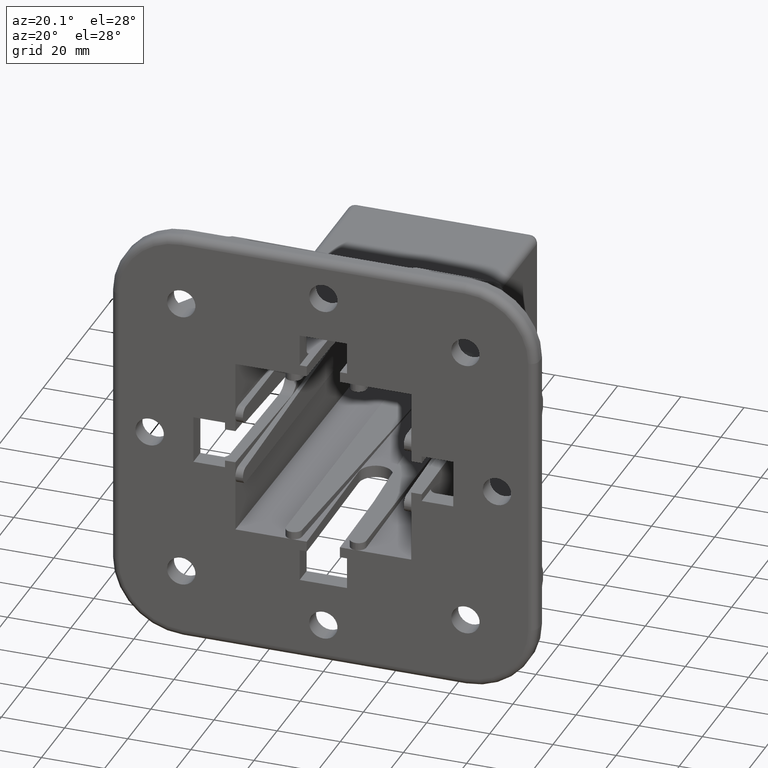
[diagram: clean part render]
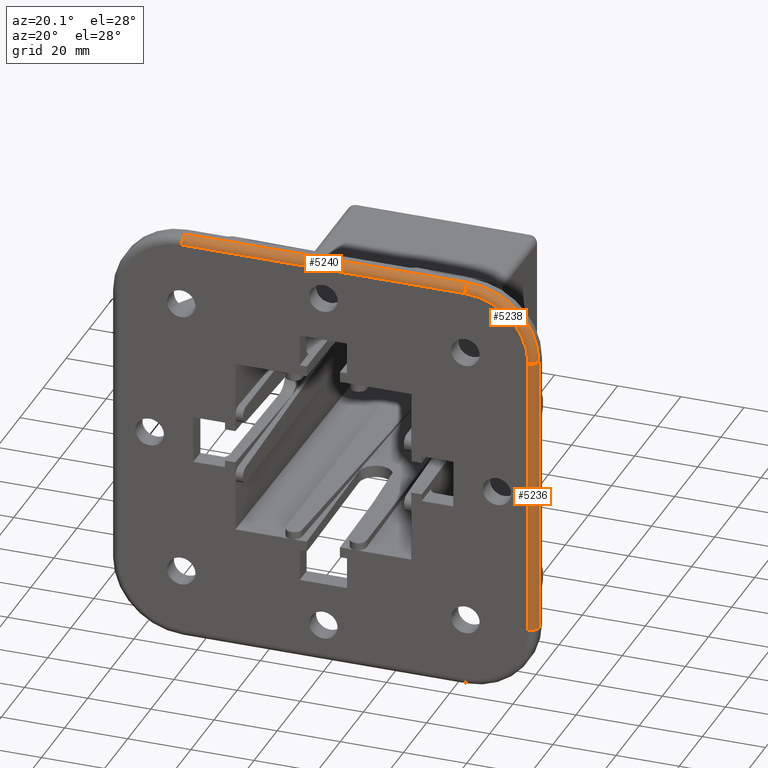
[diagram: same view with one multi-face feature highlighted, each face labeled with its STEP entity id]
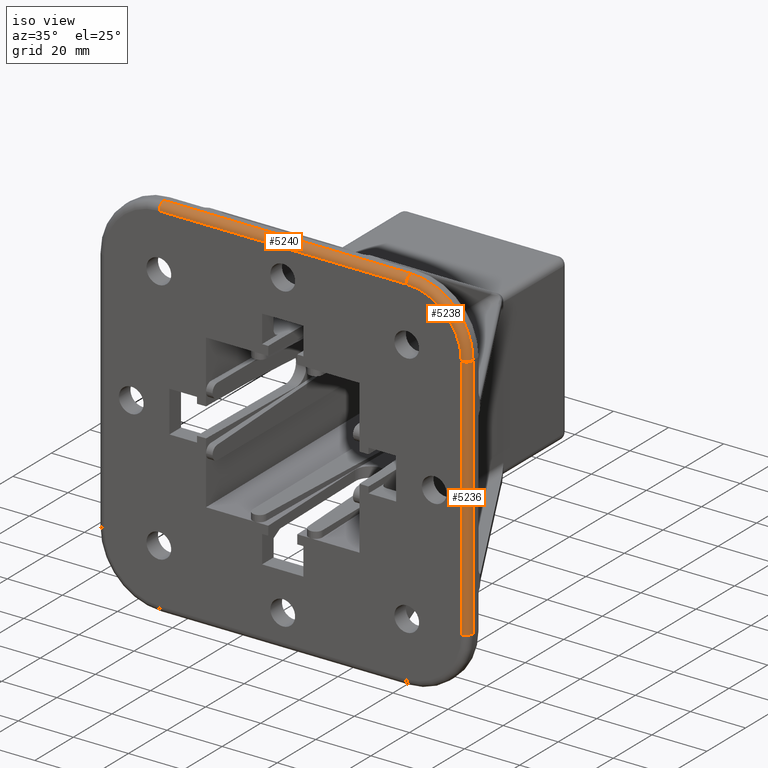
[diagram: same view with one multi-face feature highlighted, each face labeled with its STEP entity id]
A machine part, auxiliary view. The highlighted faces form ONE feature: a constant-radius fillet chain: 3 tangent blend faces with common blend radius 2.5 mm. The faces share edges in the B-rep.
A second angle (iso view) of the same feature is appended — it is thin or edge-on in the first view.
Their STEP definitions:
[1] entity #5240 (Cylinder):
#421=LINE('',#8310,#861);
#522=LINE('',#8558,#962);
#861=VECTOR('',#6267,89.7);
#962=VECTOR('',#6436,89.7);
#1181=CYLINDRICAL_SURFACE('',#5686,2.5);
#1422=FACE_OUTER_BOUND('',#1742,.T.);
#1742=EDGE_LOOP('',(#4405,#4406,#4407,#4408));
#1989=CIRCLE('',#5683,2.5);
#1991=CIRCLE('',#5687,2.5);
#2381=VERTEX_POINT('',#8308);
#2382=VERTEX_POINT('',#8309);
#2494=VERTEX_POINT('',#8555);
#2495=VERTEX_POINT('',#8557);
#2887=EDGE_CURVE('',#2381,#2382,#421,.T.);
#3015=EDGE_CURVE('',#2494,#2495,#522,.T.);
#3285=EDGE_CURVE('',#2381,#2495,#1989,.T.);
#3287=EDGE_CURVE('',#2382,#2494,#1991,.T.);
#4405=ORIENTED_EDGE('',*,*,#3285,.T.);
#4406=ORIENTED_EDGE('',*,*,#3015,.F.);
#4407=ORIENTED_EDGE('',*,*,#3287,.F.);
#4408=ORIENTED_EDGE('',*,*,#2887,.F.);
#5240=ADVANCED_FACE('',(#1422),#1181,.T.);
#5683=AXIS2_PLACEMENT_3D('',#9184,#6977,#6978);
#5686=AXIS2_PLACEMENT_3D('',#9187,#6983,#6984);
#5687=AXIS2_PLACEMENT_3D('',#9188,#6985,#6986);
#6267=DIRECTION('',(-1.,0.,0.));
#6436=DIRECTION('',(1.,0.,0.));
#6977=DIRECTION('center_axis',(-1.,0.,0.));
#6978=DIRECTION('ref_axis',(0.,0.,1.));
#6983=DIRECTION('center_axis',(-1.,0.,0.));
#6984=DIRECTION('ref_axis',(0.,0.,1.));
#6985=DIRECTION('center_axis',(-1.,0.,0.));
#6986=DIRECTION('ref_axis',(0.,0.,1.));
#8308=CARTESIAN_POINT('',(44.85,0.,64.85));
#8309=CARTESIAN_POINT('',(-44.85,0.,64.85));
#8310=CARTESIAN_POINT('',(-44.85,0.,64.85));
#8555=CARTESIAN_POINT('',(-44.85,2.5,67.35));
#8557=CARTESIAN_POINT('',(44.85,2.5,67.35));
#8558=CARTESIAN_POINT('',(44.85,2.5,67.35));
#9184=CARTESIAN_POINT('Origin',(44.85,2.5,64.85));
#9187=CARTESIAN_POINT('Origin',(-67.35,2.5,64.85));
#9188=CARTESIAN_POINT('Origin',(-44.85,2.5,64.85));
[2] entity #5238 (Torus):
#32=TOROIDAL_SURFACE('',#5682,20.,2.5);
#1420=FACE_OUTER_BOUND('',#1740,.T.);
#1740=EDGE_LOOP('',(#4397,#4398,#4399,#4400));
#1926=CIRCLE('',#5478,20.);
#1968=CIRCLE('',#5541,22.5);
#1987=CIRCLE('',#5679,2.5);
#1989=CIRCLE('',#5683,2.5);
#2381=VERTEX_POINT('',#8308);
#2388=VERTEX_POINT('',#8321);
#2495=VERTEX_POINT('',#8557);
#2509=VERTEX_POINT('',#8588);
#2894=EDGE_CURVE('',#2388,#2381,#1926,.T.);
#3050=EDGE_CURVE('',#2495,#2509,#1968,.T.);
#3283=EDGE_CURVE('',#2388,#2509,#1987,.T.);
#3285=EDGE_CURVE('',#2381,#2495,#1989,.T.);
#4397=ORIENTED_EDGE('',*,*,#3283,.T.);
#4398=ORIENTED_EDGE('',*,*,#3050,.F.);
#4399=ORIENTED_EDGE('',*,*,#3285,.F.);
#4400=ORIENTED_EDGE('',*,*,#2894,.F.);
#5238=ADVANCED_FACE('',(#1420),#32,.T.);
#5478=AXIS2_PLACEMENT_3D('',#8323,#6277,#6278);
#5541=AXIS2_PLACEMENT_3D('',#8629,#6517,#6518);
#5679=AXIS2_PLACEMENT_3D('',#9180,#6969,#6970);
#5682=AXIS2_PLACEMENT_3D('',#9183,#6975,#6976);
#5683=AXIS2_PLACEMENT_3D('',#9184,#6977,#6978);
#6277=DIRECTION('center_axis',(0.,-1.,0.));
#6278=DIRECTION('ref_axis',(0.,0.,-1.));
#6517=DIRECTION('center_axis',(0.,1.,0.));
#6518=DIRECTION('ref_axis',(0.,0.,-1.));
#6969=DIRECTION('center_axis',(0.,0.,1.));
#6970=DIRECTION('ref_axis',(1.,0.,0.));
#6975=DIRECTION('center_axis',(0.,-1.,0.));
#6976=DIRECTION('ref_axis',(0.,0.,-1.));
#6977=DIRECTION('center_axis',(-1.,0.,0.));
#6978=DIRECTION('ref_axis',(0.,0.,1.));
#8308=CARTESIAN_POINT('',(44.85,0.,64.85));
#8321=CARTESIAN_POINT('',(64.85,0.,44.85));
#8323=CARTESIAN_POINT('Origin',(44.85,0.,44.85));
#8557=CARTESIAN_POINT('',(44.85,2.5,67.35));
#8588=CARTESIAN_POINT('',(67.35,2.5,44.85));
#8629=CARTESIAN_POINT('Origin',(44.85,2.5,44.85));
#9180=CARTESIAN_POINT('Origin',(64.85,2.5,44.85));
#9183=CARTESIAN_POINT('Origin',(44.85,2.5,44.85));
#9184=CARTESIAN_POINT('Origin',(44.85,2.5,64.85));
[3] entity #5236 (Cylinder):
#424=LINE('',#8322,#864);
#532=LINE('',#8590,#972);
#864=VECTOR('',#6276,89.7);
#972=VECTOR('',#6462,89.7);
#1179=CYLINDRICAL_SURFACE('',#5678,2.5);
#1418=FACE_OUTER_BOUND('',#1738,.T.);
#1738=EDGE_LOOP('',(#4389,#4390,#4391,#4392));
#1986=CIRCLE('',#5677,2.5);
#1987=CIRCLE('',#5679,2.5);
#2387=VERTEX_POINT('',#8319);
#2388=VERTEX_POINT('',#8321);
#2500=VERTEX_POINT('',#8570);
#2509=VERTEX_POINT('',#8588);
#2893=EDGE_CURVE('',#2387,#2388,#424,.T.);
#3032=EDGE_CURVE('',#2509,#2500,#532,.T.);
#3282=EDGE_CURVE('',#2387,#2500,#1986,.T.);
#3283=EDGE_CURVE('',#2388,#2509,#1987,.T.);
#4389=ORIENTED_EDGE('',*,*,#3282,.T.);
#4390=ORIENTED_EDGE('',*,*,#3032,.F.);
#4391=ORIENTED_EDGE('',*,*,#3283,.F.);
#4392=ORIENTED_EDGE('',*,*,#2893,.F.);
#5236=ADVANCED_FACE('',(#1418),#1179,.T.);
#5677=AXIS2_PLACEMENT_3D('',#9178,#6965,#6966);
#5678=AXIS2_PLACEMENT_3D('',#9179,#6967,#6968);
#5679=AXIS2_PLACEMENT_3D('',#9180,#6969,#6970);
#6276=DIRECTION('',(0.,0.,1.));
#6462=DIRECTION('',(0.,0.,-1.));
#6965=DIRECTION('center_axis',(0.,0.,1.));
#6966=DIRECTION('ref_axis',(1.,0.,0.));
#6967=DIRECTION('center_axis',(0.,0.,1.));
#6968=DIRECTION('ref_axis',(1.,0.,0.));
#6969=DIRECTION('center_axis',(0.,0.,1.));
#6970=DIRECTION('ref_axis',(1.,0.,0.));
#8319=CARTESIAN_POINT('',(64.85,0.,-44.85));
#8321=CARTESIAN_POINT('',(64.85,0.,44.85));
#8322=CARTESIAN_POINT('',(64.85,0.,44.85));
#8570=CARTESIAN_POINT('',(67.35,2.5,-44.85));
#8588=CARTESIAN_POINT('',(67.35,2.5,44.85));
#8590=CARTESIAN_POINT('',(67.35,2.5,-44.85));
#9178=CARTESIAN_POINT('Origin',(64.85,2.5,-44.85));
#9179=CARTESIAN_POINT('Origin',(64.85,2.5,67.35));
#9180=CARTESIAN_POINT('Origin',(64.85,2.5,44.85));